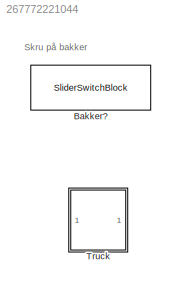
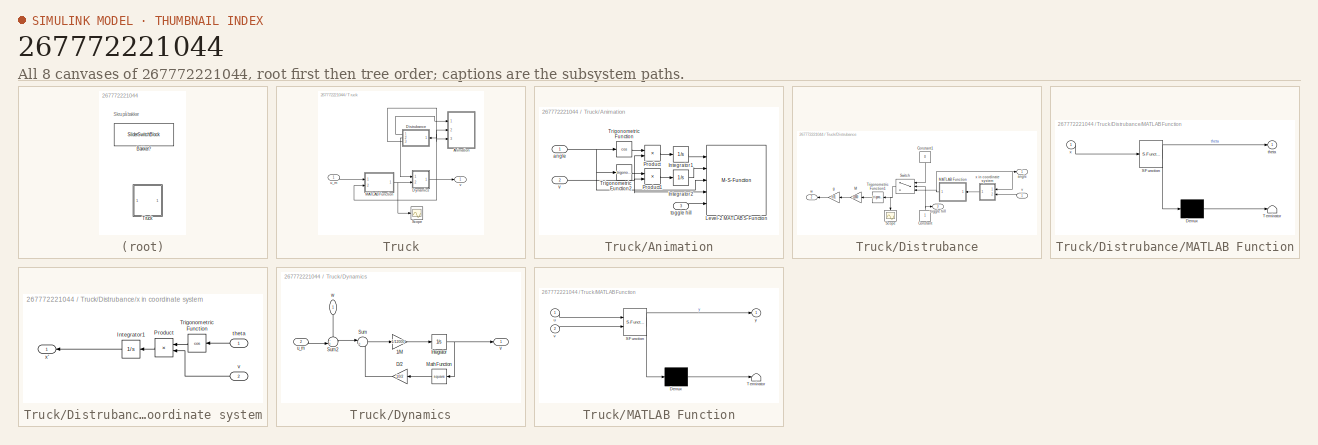
[diagram: thumbnail index - all 8 canvases of the model, root first then tree order]
MODEL slx_267772221044
KIND model
CONFIG AbsTol = auto
CONFIG EnableMultiTasking = off
CONFIG FixedStep = auto
CONFIG MaxStep = 0.01
CONFIG MinStep = auto
CONFIG RelTol = 1e-3
CONFIG SampleTimeConstraint = Unconstrained
CONFIG Solver = VariableStepAuto
CONFIG SolverName = VariableStepAuto
CONFIG StartTime = 0.0
CONFIG StopTime = 100.0
BLOCK [SliderSwitchBlock] Bakker?
  LabelPosition = Hide
BLOCK [SubSystem] Truck
  Ports = [1, 1]
BLOCK [SubSystem] Truck/Animation
  Ports = [3]
BLOCK [Integrator] Truck/Animation/Integrator1
  Ports = [1, 1]
BLOCK [Integrator] Truck/Animation/Integrator2
  Ports = [1, 1]
BLOCK [M-S-Function] Truck/Animation/Level-2 MATLAB S-Function
  FunctionName = truckSideSFunction
  Ports = [5]
BLOCK [Product] Truck/Animation/Product
  Ports = [2, 1]
BLOCK [Product] Truck/Animation/Product1
  Ports = [2, 1]
BLOCK [Trigonometry] Truck/Animation/Trigonometric Function
  Operator = cos
  Ports = [1, 1]
BLOCK [Trigonometry] Truck/Animation/Trigonometric Function2
  Ports = [1, 1]
BLOCK [Inport] Truck/Animation/angle
BLOCK [Inport] Truck/Animation/toggle hill
  Port = 3
BLOCK [Inport] Truck/Animation/v
  Port = 2
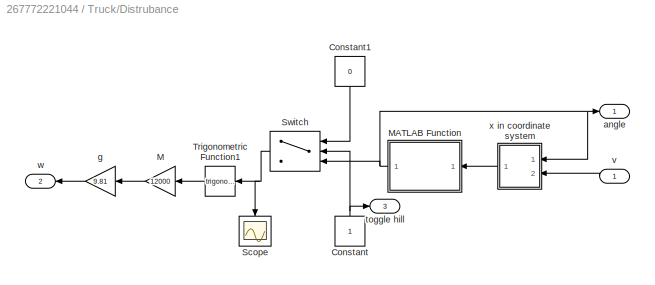
BLOCK [SubSystem] Truck/Distrubance
  Ports = [1, 3]
BLOCK [Constant] Truck/Distrubance/Constant
BLOCK [Constant] Truck/Distrubance/Constant1
  Value = 0
BLOCK [Gain] Truck/Distrubance/M
  Gain = 12000
BLOCK [SubSystem] Truck/Distrubance/MATLAB Function
  ErrorFcn = Stateflow.Translate.translate
  PermitHierarchicalResolution = ExplicitOnly
  Ports = [1, 1]
  SFBlockType = MATLAB Function
  TreatAsAtomicUnit = on
BLOCK [Demux] Truck/Distrubance/MATLAB Function/ Demux 
  Outputs = 1
  Ports = [1, 1]
BLOCK [S-Function] Truck/Distrubance/MATLAB Function/ SFunction 
  EnableBusSupport = on
  FunctionName = sf_sfun
  PortCounts = [1 2]
  Ports = [1, 2]
  SFcnIsStateOwnerBlock = off
  SFunctionDeploymentMode = off
  Tag = Stateflow S-Function 2
BLOCK [Terminator] Truck/Distrubance/MATLAB Function/ Terminator 
BLOCK [Outport] Truck/Distrubance/MATLAB Function/theta
BLOCK [Inport] Truck/Distrubance/MATLAB Function/x
BLOCK [Scope] Truck/Distrubance/Scope
  Floating = off
  NumInputPorts = 1
  Ports = [1]
  ScopeSpecificationString = Simulink.scopes.TimeScopeBlockCfg('CurrentConfiguration', extmgr.ConfigurationSet(extmgr.Configuration('Core','General UI',true),extmgr.Configuration('Core','Source UI',true),extmgr.Configuration('Sources','WiredSimulink',true,'DataLoggingVariableName','ScopeData1'),extmgr.Configuration('Visuals','Time Domain',true,'SerializedDisplays',{struct('MinYLimReal','-1.00000','MaxYLimReal','1.00000','YLab...<+1389ch>
BLOCK [Switch] Truck/Distrubance/Switch
  Criteria = u2 > Threshold
  InputSameDT = off
  SaturateOnIntegerOverflow = off
BLOCK [Trigonometry] Truck/Distrubance/Trigonometric Function1
  Ports = [1, 1]
BLOCK [Outport] Truck/Distrubance/angle
BLOCK [Gain] Truck/Distrubance/g
  Gain = 9.81
BLOCK [Outport] Truck/Distrubance/toggle hill
  Port = 3
BLOCK [Inport] Truck/Distrubance/v
BLOCK [Outport] Truck/Distrubance/w
  Port = 2
BLOCK [SubSystem] Truck/Distrubance/x in coordinate system
  Ports = [2, 1]
BLOCK [Integrator] Truck/Distrubance/x in coordinate system/Integrator1
  Ports = [1, 1]
BLOCK [Product] Truck/Distrubance/x in coordinate system/Product
  Ports = [2, 1]
BLOCK [Trigonometry] Truck/Distrubance/x in coordinate system/Trigonometric Function
  Operator = cos
  Ports = [1, 1]
BLOCK [Inport] Truck/Distrubance/x in coordinate system/theta
BLOCK [Inport] Truck/Distrubance/x in coordinate system/v
  Port = 2
BLOCK [Outport] Truck/Distrubance/x in coordinate system/x'
BLOCK [SubSystem] Truck/Dynamics
  ClipboardFcn = parameters_truck.m
  Ports = [2, 1]
BLOCK [Gain] Truck/Dynamics/1//M
  Gain = 1/12000
BLOCK [Gain] Truck/Dynamics/D//2
  Gain = 10/2
BLOCK [Integrator] Truck/Dynamics/Integrator
  Ports = [1, 1]
BLOCK [Math] Truck/Dynamics/Math Function
  Operator = square
  Ports = [1, 1]
BLOCK [Sum] Truck/Dynamics/Sum
  Inputs = |+-
  Ports = [2, 1]
BLOCK [Sum] Truck/Dynamics/Sum2
  Inputs = -+|
  Ports = [2, 1]
BLOCK [Inport] Truck/Dynamics/u_m
  Port = 2
BLOCK [Outport] Truck/Dynamics/v
BLOCK [Inport] Truck/Dynamics/w
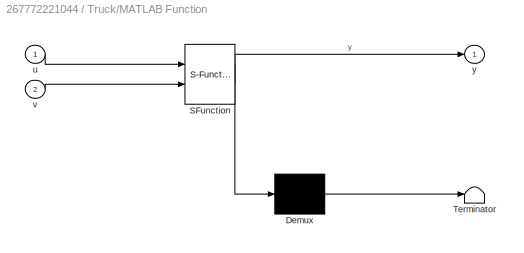
BLOCK [SubSystem] Truck/MATLAB Function
  ErrorFcn = Stateflow.Translate.translate
  PermitHierarchicalResolution = ExplicitOnly
  Ports = [2, 1]
  SFBlockType = MATLAB Function
  TreatAsAtomicUnit = on
BLOCK [Demux] Truck/MATLAB Function/ Demux 
  Outputs = 1
  Ports = [1, 1]
BLOCK [S-Function] Truck/MATLAB Function/ SFunction 
  EnableBusSupport = on
  FunctionName = sf_sfun
  PortCounts = [2 2]
  Ports = [2, 2]
  SFcnIsStateOwnerBlock = off
  SFunctionDeploymentMode = off
  Tag = Stateflow S-Function 1
BLOCK [Terminator] Truck/MATLAB Function/ Terminator 
BLOCK [Inport] Truck/MATLAB Function/u
BLOCK [Inport] Truck/MATLAB Function/v
  Port = 2
BLOCK [Outport] Truck/MATLAB Function/y
BLOCK [Scope] Truck/Scope
  Floating = off
  NumInputPorts = 1
  Ports = [1]
  ScopeSpecificationString = Simulink.scopes.TimeScopeBlockCfg('CurrentConfiguration', extmgr.ConfigurationSet(extmgr.Configuration('Core','General UI',true),extmgr.Configuration('Core','Source UI',true),extmgr.Configuration('Sources','WiredSimulink',true,'DataLoggingVariableName','ScopeData1'),extmgr.Configuration('Visuals','Time Domain',true,'SerializedDisplays',{struct('MinYLimReal','-31192.74022','MaxYLimReal','46432.6146...<+1434ch>
BLOCK [Inport] Truck/u_m
BLOCK [Outport] Truck/v
ANNOTATION (root): Skru på bakker
LINE Truck/Animation/Integrator1:1 -> Truck/Animation/Level-2 MATLAB S-Function:1
LINE Truck/Animation/Integrator2:1 -> Truck/Animation/Level-2 MATLAB S-Function:2
LINE Truck/Animation/Product1:1 -> Truck/Animation/Integrator2:1
LINE Truck/Animation/Product:1 -> Truck/Animation/Integrator1:1
LINE Truck/Animation/Trigonometric Function2:1 -> Truck/Animation/Product1:1
LINE Truck/Animation/Trigonometric Function:1 -> Truck/Animation/Product:1
NET Truck/Animation/angle:1 -> Truck/Animation/Level-2 MATLAB S-Function:3, Truck/Animation/Trigonometric Function2:1, Truck/Animation/Trigonometric Function:1
LINE Truck/Animation/toggle hill:1 -> Truck/Animation/Level-2 MATLAB S-Function:5
NET Truck/Animation/v:1 -> Truck/Animation/Level-2 MATLAB S-Function:4, Truck/Animation/Product1:2, Truck/Animation/Product:2
LINE Truck/Distrubance/Constant1:1 -> Truck/Distrubance/Switch:1
NET Truck/Distrubance/Constant:1 -> Truck/Distrubance/Switch:2, Truck/Distrubance/toggle hill:1
LINE Truck/Distrubance/M:1 -> Truck/Distrubance/g:1
NET Truck/Distrubance/MATLAB Function:1 -> Truck/Distrubance/Switch:3, Truck/Distrubance/angle:1, Truck/Distrubance/x in coordinate system:1
NET Truck/Distrubance/Switch:1 -> Truck/Distrubance/Scope:1, Truck/Distrubance/Trigonometric Function1:1
LINE Truck/Distrubance/Trigonometric Function1:1 -> Truck/Distrubance/M:1
LINE Truck/Distrubance/g:1 -> Truck/Distrubance/w:1
LINE Truck/Distrubance/v:1 -> Truck/Distrubance/x in coordinate system:2
LINE Truck/Distrubance/x in coordinate system/Integrator1:1 -> Truck/Distrubance/x in coordinate system/x':1
LINE Truck/Distrubance/x in coordinate system/Product:1 -> Truck/Distrubance/x in coordinate system/Integrator1:1
LINE Truck/Distrubance/x in coordinate system/Trigonometric Function:1 -> Truck/Distrubance/x in coordinate system/Product:1
LINE Truck/Distrubance/x in coordinate system/theta:1 -> Truck/Distrubance/x in coordinate system/Trigonometric Function:1
LINE Truck/Distrubance/x in coordinate system/v:1 -> Truck/Distrubance/x in coordinate system/Product:2
LINE Truck/Distrubance/x in coordinate system:1 -> Truck/Distrubance/MATLAB Function:1
LINE Truck/Distrubance:1 -> Truck/Animation:1
LINE Truck/Distrubance:2 -> Truck/Dynamics:1
LINE Truck/Distrubance:3 -> Truck/Animation:3
LINE Truck/Dynamics/1//M:1 -> Truck/Dynamics/Integrator:1
LINE Truck/Dynamics/D//2:1 -> Truck/Dynamics/Sum:2
NET Truck/Dynamics/Integrator:1 -> Truck/Dynamics/Math Function:1, Truck/Dynamics/v:1
LINE Truck/Dynamics/Math Function:1 -> Truck/Dynamics/D//2:1
LINE Truck/Dynamics/Sum2:1 -> Truck/Dynamics/Sum:1
LINE Truck/Dynamics/Sum:1 -> Truck/Dynamics/1//M:1
LINE Truck/Dynamics/u_m:1 -> Truck/Dynamics/Sum2:2
LINE Truck/Dynamics/w:1 -> Truck/Dynamics/Sum2:1
NET Truck/Dynamics:1 -> Truck/Animation:2, Truck/Distrubance:1, Truck/MATLAB Function:2, Truck/v:1
NET Truck/MATLAB Function:1 -> Truck/Dynamics:2, Truck/Scope:1
LINE Truck/u_m:1 -> Truck/MATLAB Function:1
note: NET lines group one-source signal fan-out (src -> all destinations, sorted); 1:1 wires keep LINE
CHART Truck/MATLAB Function states=1 transitions=1
  STATE_LABEL 'eML_blk_kernel()'
  STATE_LABEL 'SCRIPT:\nfunction y = saturation(u,v)\n    Pmax = 400000;\n    epsilon = 0.001;\n    \n    sat = Pmax/sqrt(v^2+epsilon);\n    y = max(min(u,sat),-sat);\n'
CHART Truck/Distrubance/MATLAB Function states=1 transitions=1
  STATE_LABEL 'eML_blk_kernel()'
  STATE_LABEL 'SCRIPT:\nfunction theta = fcn(x)\n[~,theta] = truckRoad(x);\n\n'
